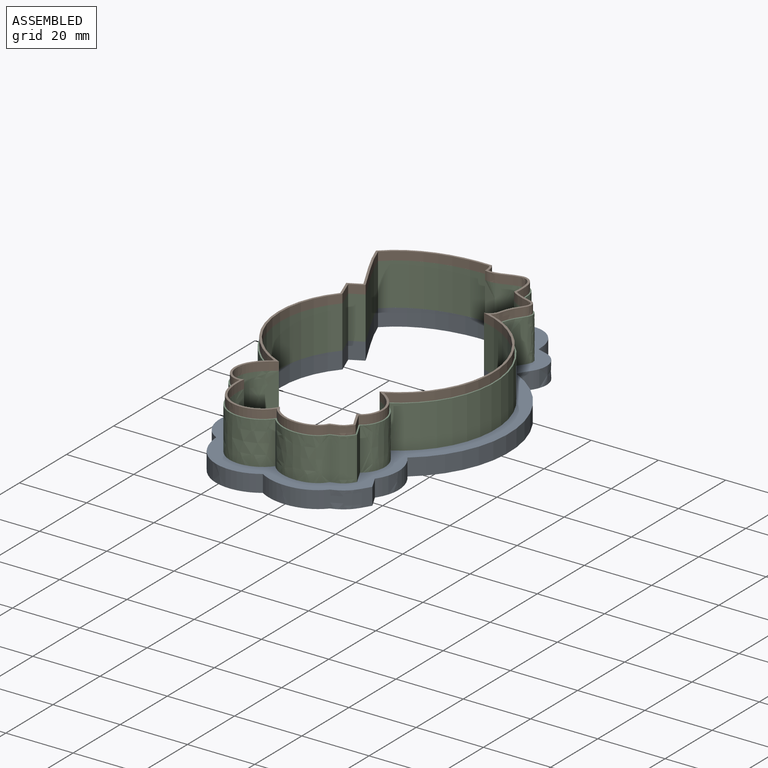
[diagram: assembled view]
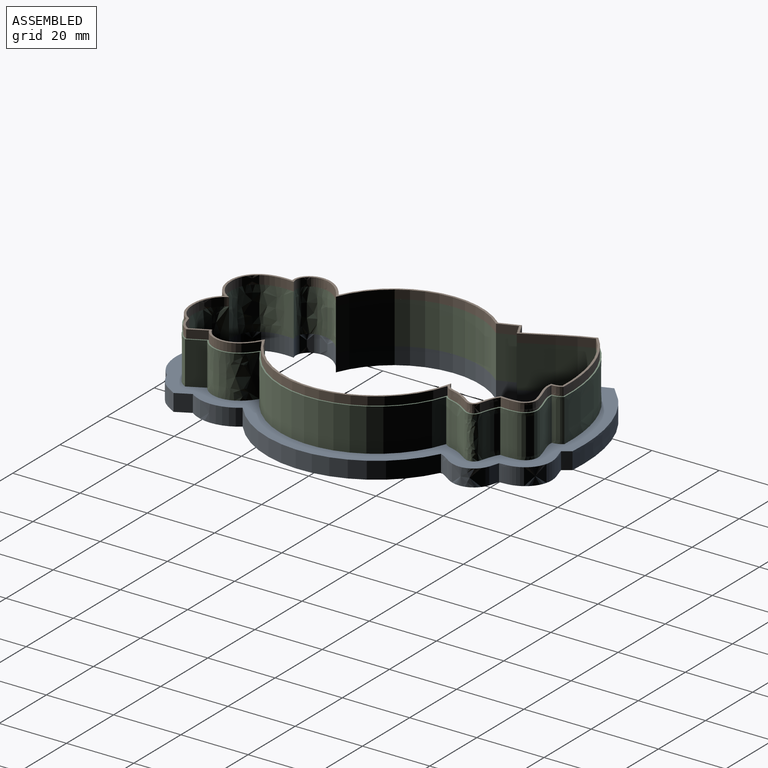
[diagram: assembled view, second angle]
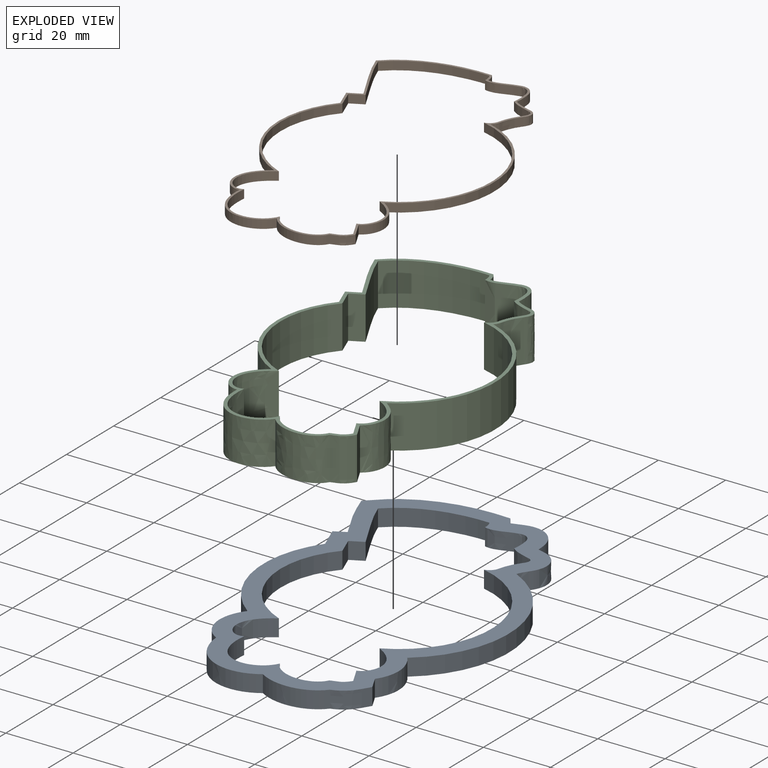
[diagram: exploded view]
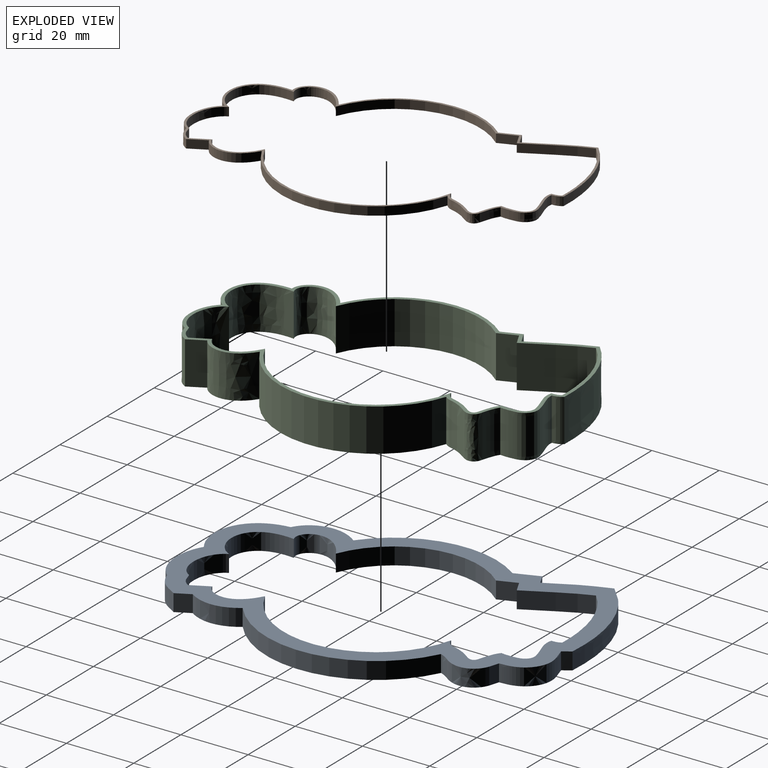
[diagram: exploded view, second angle]
ASSEMBLY  parts=3 mates=2
PART A: 41 faces, bbox 76.7x114.1x8.4 mm
  f0: plane 114.12x76.71mm, normal (0,0,1), area 1610.9mm2, adj f2,f3,f4,f5,f6,f7,f8,f9
  f1: plane 114.12x76.71mm, normal (0,0,-1), area 1610.9mm2, adj f2,f3,f4,f5,f6,f7,f8,f9
  f2: extruded ~16.71x7.63mm, area 93.4mm2, adj f0,f1,f3,f20
  f3: plane 5.08x3.32mm, normal (-0.46,0.89,0), area 19mm2, adj f0,f1,f2,f4
  f4: plane 6.96x5.08mm, normal (-0.93,-0.36,0), area 37.9mm2, adj f0,f1,f3,f5
  f5: cylinder r=30.77mm len=42.59mm, axis (0,0,-1), area 242.7mm2, adj f0,f1,f4,f6
  f6: extruded ~16.88x5.32mm, area 99.1mm2, adj f0,f1,f5,f7
  f7: extruded ~21.46x13.35mm, area 150mm2, adj f0,f1,f6,f8
  f8: extruded ~18.52x5.08mm, area 102.6mm2, adj f0,f1,f7,f9
  f9: extruded ~7.56x7.21mm, area 54.4mm2, adj f0,f1,f8,f10
  f10: plane 5.08x4.2mm, normal (0.89,0.46,0), area 24.1mm2, adj f0,f1,f9,f11
  f11: extruded ~14.49x5.08mm, area 79.2mm2, adj f0,f1,f10,f12
  f12: cylinder r=32.61mm len=54.8mm, axis (0,0,-1), area 333.6mm2, adj f0,f1,f11,f13
  f13: extruded ~5.08x2.91mm, area 16.9mm2, adj f0,f1,f12,f14
  f14: extruded ~11.24x5.45mm, area 73.3mm2, adj f0,f1,f13,f15
  f15: extruded ~5.08x1.7mm, area 9mm2, adj f0,f1,f14,f16
  f16: extruded ~5.08x2.31mm, area 11.8mm2, adj f0,f1,f15,f17
  f17: extruded ~10.56x7.64mm, area 75mm2, adj f0,f1,f16,f18
  f18: extruded ~5.08x3.6mm, area 19.2mm2, adj f0,f1,f17,f19
  f19: extruded ~5.08x2.31mm, area 14.2mm2, adj f0,f1,f18,f20
  f20: extruded ~35.58x12.61mm, area 199.3mm2, adj f0,f1,f2,f19
  f21: extruded ~17.56x8.6mm, area 99.4mm2, adj f0,f1,f22,f40
  f22: plane 5.08x3.8mm, normal (0.46,-0.89,0), area 21.7mm2, adj f0,f1,f21,f23
  f23: plane 5.42x5.08mm, normal (0.93,0.36,0), area 29.5mm2, adj f0,f1,f22,f24
  f24: cylinder r=25.69mm len=40.81mm, axis (0,0,-1), area 249.3mm2, adj f0,f1,f23,f25
  f25: extruded ~13.59x6.43mm, area 100.4mm2, adj f0,f1,f24,f26
  f26: extruded ~16.3x12.79mm, area 138.4mm2, adj f0,f1,f25,f27
  f27: extruded ~15.45x5.08mm, area 93.3mm2, adj f0,f1,f26,f28
  f28: extruded ~5.08x4.96mm, area 30.7mm2, adj f0,f1,f27,f29
  f29: plane 5.3x5.08mm, normal (-0.89,-0.46,0), area 30.4mm2, adj f0,f1,f28,f30
  f30: extruded ~13.77x6.29mm, area 91mm2, adj f0,f1,f29,f31
  f31: cylinder r=27.53mm len=51.72mm, axis (0,0,-1), area 345.2mm2, adj f0,f1,f30,f32
  f32: extruded ~5.08x2.57mm, area 18.5mm2, adj f0,f1,f31,f33
  f33: extruded ~6.14x5.08mm, area 34.7mm2, adj f0,f1,f32,f34
  f34: extruded ~5.08x3.25mm, area 22.5mm2, adj f0,f1,f33,f35
  f35: extruded ~5.67x5.08mm, area 31.6mm2, adj f0,f1,f34,f36
  f36: extruded ~5.08x4.7mm, area 23.9mm2, adj f0,f1,f35,f37
  f37: extruded ~5.08x4.19mm, area 30.7mm2, adj f0,f1,f36,f38
  f38: extruded ~8.6x5.08mm, area 45.2mm2, adj f0,f1,f37,f39
  f39: extruded ~5.08x2.8mm, area 14.9mm2, adj f0,f1,f38,f40
  f40: extruded ~26.93x8.86mm, area 148mm2, adj f0,f1,f21,f39
PART B: 42 faces, bbox 65.2x104.8x3.9 mm
  f0: plane 104.78x65.19mm, normal (0,0,1), area 199.1mm2, adj f2,f3,f4,f5,f6,f7,f8,f9
  f1: plane 104.78x65.19mm, normal (0,0,-1), area 199.1mm2, adj f2,f3,f4,f5,f6,f7,f8,f9
  f2: extruded ~17.45x8.49mm, area 49.3mm2, adj f0,f1,f3,f21
  f3: plane 3.75x2.54mm, normal (-0.46,0.89,0), area 10.7mm2, adj f0,f1,f2,f4
  f4: plane 5.59x2.54mm, normal (-0.93,-0.36,0), area 15.2mm2, adj f0,f1,f3,f5
  f5: cylinder r=26.33mm len=41.05mm, axis (0,0,-1), area 123.6mm2, adj f0,f1,f4,f6
  f6: extruded ~14.12x5.71mm, area 49.3mm2, adj f0,f1,f5,f7
  f7: extruded ~16.96x12.51mm, area 68.4mm2, adj f0,f1,f6,f8
  f8: extruded ~15.89x3.97mm, area 46.7mm2, adj f0,f1,f7,f9
  f9: extruded ~5.23x3.58mm, area 16.7mm2, adj f0,f1,f8,f10
  f10: plane 4.98x2.6mm, normal (0.89,0.46,0), area 14.3mm2, adj f0,f1,f9,f11
  f11: extruded ~14.07x5.56mm, area 44.3mm2, adj f0,f1,f10,f12
  f12: cylinder r=28.17mm len=51.92mm, axis (0,0,-1), area 169.2mm2, adj f0,f1,f11,f13
  f13: extruded ~2.54x2.02mm, area 6.3mm2, adj f0,f1,f12,f14
  f14: extruded ~5.92x2.78mm, area 16.7mm2, adj f0,f1,f13,f15
  f15: extruded ~4.25x2.54mm, area 14.4mm2, adj f0,f1,f14,f16
  f16: extruded ~5.15x2.54mm, area 14.2mm2, adj f0,f1,f15,f17
  f17: extruded ~4.49x2.54mm, area 11.4mm2, adj f0,f1,f16,f18
  f18: extruded ~4.99x3.72mm, area 18.1mm2, adj f0,f1,f17,f19
  f19: extruded ~7.8x2.54mm, area 20.5mm2, adj f0,f1,f18,f20
  f20: extruded ~2.92x2.54mm, area 7.9mm2, adj f0,f1,f19,f21
  f21: extruded ~28.01x9.33mm, area 77.2mm2, adj f0,f1,f2,f20
  f22: extruded ~17.56x8.6mm, area 49.7mm2, adj f0,f1,f23,f41
  f23: plane 3.8x2.54mm, normal (0.46,-0.89,0), area 10.9mm2, adj f0,f1,f22,f24
  f24: plane 5.42x2.54mm, normal (0.93,0.36,0), area 14.7mm2, adj f0,f1,f23,f25
  f25: cylinder r=25.69mm len=40.81mm, axis (0,0,-1), area 124.6mm2, adj f0,f1,f24,f26
  f26: extruded ~13.59x6.43mm, area 50.2mm2, adj f0,f1,f25,f27
  f27: extruded ~16.3x12.79mm, area 69.2mm2, adj f0,f1,f26,f28
  f28: extruded ~15.45x4.59mm, area 46.7mm2, adj f0,f1,f27,f29
  f29: extruded ~4.96x3.11mm, area 15.3mm2, adj f0,f1,f28,f30
  f30: plane 5.3x2.77mm, normal (-0.89,-0.46,0), area 15.2mm2, adj f0,f1,f29,f31
  f31: extruded ~13.77x6.29mm, area 45.5mm2, adj f0,f1,f30,f32
  f32: cylinder r=27.53mm len=51.72mm, axis (0,0,-1), area 172.6mm2, adj f0,f1,f31,f33
  f33: extruded ~2.57x2.54mm, area 9.3mm2, adj f0,f1,f32,f34
  f34: extruded ~6.14x2.89mm, area 17.4mm2, adj f0,f1,f33,f35
  f35: extruded ~3.25x2.54mm, area 11.2mm2, adj f0,f1,f34,f36
  f36: extruded ~5.67x2.54mm, area 15.8mm2, adj f0,f1,f35,f37
  f37: extruded ~4.7x2.54mm, area 12mm2, adj f0,f1,f36,f38
  f38: extruded ~4.19x3.16mm, area 15.3mm2, adj f0,f1,f37,f39
  f39: extruded ~8.6x2.54mm, area 22.6mm2, adj f0,f1,f38,f40
  f40: extruded ~2.8x2.54mm, area 7.4mm2, adj f0,f1,f39,f41
  f41: extruded ~26.93x8.86mm, area 74mm2, adj f0,f1,f22,f40
PART C: 42 faces, bbox 68.5x107.7x16.6 mm
  f0: plane 107.69x68.54mm, normal (0,0,1), area 318.3mm2, adj f2,f3,f4,f5,f6,f7,f8,f9
  f1: plane 107.69x68.54mm, normal (0,0,-1), area 318.3mm2, adj f2,f3,f4,f5,f6,f7,f8,f9
  f2: extruded ~17.38x12.7mm, area 245.5mm2, adj f0,f1,f3,f21
  f3: plane 12.7x3.71mm, normal (-0.46,0.89,0), area 53.1mm2, adj f0,f1,f2,f4
  f4: plane 12.7x5.7mm, normal (-0.93,-0.36,0), area 77.5mm2, adj f0,f1,f3,f5
  f5: cylinder r=26.71mm len=41.18mm, axis (0,0,-1), area 615.8mm2, adj f0,f1,f4,f6
  f6: extruded ~14.44x12.7mm, area 245.1mm2, adj f0,f1,f5,f7
  f7: extruded ~17.35x12.7mm, area 341.8mm2, adj f0,f1,f6,f8
  f8: extruded ~16.14x12.7mm, area 234.8mm2, adj f0,f1,f7,f9
  f9: extruded ~12.7x5.4mm, area 87.4mm2, adj f0,f1,f8,f10
  f10: plane 12.7x4.84mm, normal (0.89,0.46,0), area 69.4mm2, adj f0,f1,f9,f11
  f11: extruded ~14.2x12.7mm, area 218.5mm2, adj f0,f1,f10,f12
  f12: cylinder r=28.55mm len=52.11mm, axis (0,0,-1), area 840.4mm2, adj f0,f1,f11,f13
  f13: extruded ~12.7x1.76mm, area 25.9mm2, adj f0,f1,f12,f14
  f14: extruded ~12.7x5.79mm, area 81.9mm2, adj f0,f1,f13,f15
  f15: extruded ~12.7x4.85mm, area 81.7mm2, adj f0,f1,f14,f16
  f16: extruded ~12.7x4.84mm, area 66.5mm2, adj f0,f1,f15,f17
  f17: extruded ~12.7x4.35mm, area 55.4mm2, adj f0,f1,f16,f18
  f18: extruded ~12.7x5.47mm, area 98.9mm2, adj f0,f1,f17,f19
  f19: extruded ~12.7x7.34mm, area 96.8mm2, adj f0,f1,f18,f20
  f20: extruded ~12.7x2.96mm, area 40.6mm2, adj f0,f1,f19,f21
  f21: extruded ~28.66x12.7mm, area 395.5mm2, adj f0,f1,f2,f20
  f22: extruded ~17.56x12.7mm, area 248.5mm2, adj f0,f1,f23,f41
  f23: plane 12.7x3.8mm, normal (0.46,-0.89,0), area 54.3mm2, adj f0,f1,f22,f24
  f24: plane 12.7x5.42mm, normal (0.93,0.36,0), area 73.7mm2, adj f0,f1,f23,f25
  f25: cylinder r=25.69mm len=40.81mm, axis (0,0,-1), area 623.2mm2, adj f0,f1,f24,f26
  f26: extruded ~13.59x12.7mm, area 250.9mm2, adj f0,f1,f25,f27
  f27: extruded ~16.3x12.79mm, area 346.1mm2, adj f0,f1,f26,f28
  f28: extruded ~15.45x12.7mm, area 233.4mm2, adj f0,f1,f27,f29
  f29: extruded ~12.7x4.96mm, area 76.7mm2, adj f0,f1,f28,f30
  f30: plane 12.7x5.3mm, normal (-0.89,-0.46,0), area 76mm2, adj f0,f1,f29,f31
  f31: extruded ~13.77x12.7mm, area 227.6mm2, adj f0,f1,f30,f32
  f32: cylinder r=27.53mm len=51.72mm, axis (0,0,-1), area 863.1mm2, adj f0,f1,f31,f33
  f33: extruded ~12.7x2.57mm, area 46.3mm2, adj f0,f1,f32,f34
  f34: extruded ~12.7x6.14mm, area 86.9mm2, adj f0,f1,f33,f35
  f35: extruded ~12.7x3.25mm, area 56.2mm2, adj f0,f1,f34,f36
  f36: extruded ~12.7x5.67mm, area 79.1mm2, adj f0,f1,f35,f37
  f37: extruded ~12.7x4.7mm, area 59.8mm2, adj f0,f1,f36,f38
  f38: extruded ~12.7x4.19mm, area 76.7mm2, adj f0,f1,f37,f39
  f39: extruded ~12.7x8.6mm, area 113mm2, adj f0,f1,f38,f40
  f40: extruded ~12.7x2.8mm, area 37.2mm2, adj f0,f1,f39,f41
  f41: extruded ~26.93x12.7mm, area 369.9mm2, adj f0,f1,f22,f40
PLACE A at identity
PLACE B t=(177.41,0.41,17.78)mm
PLACE C t=(78.83,4.76,5.08)mm
MATE fastened C.f1 <-> A.f0  axis (0,0,1) through (65.31,-20.19,5.08)mm
MATE fastened B.f1 <-> C.f0  axis (0,0,1) through (65.31,-20.19,17.78)mm
